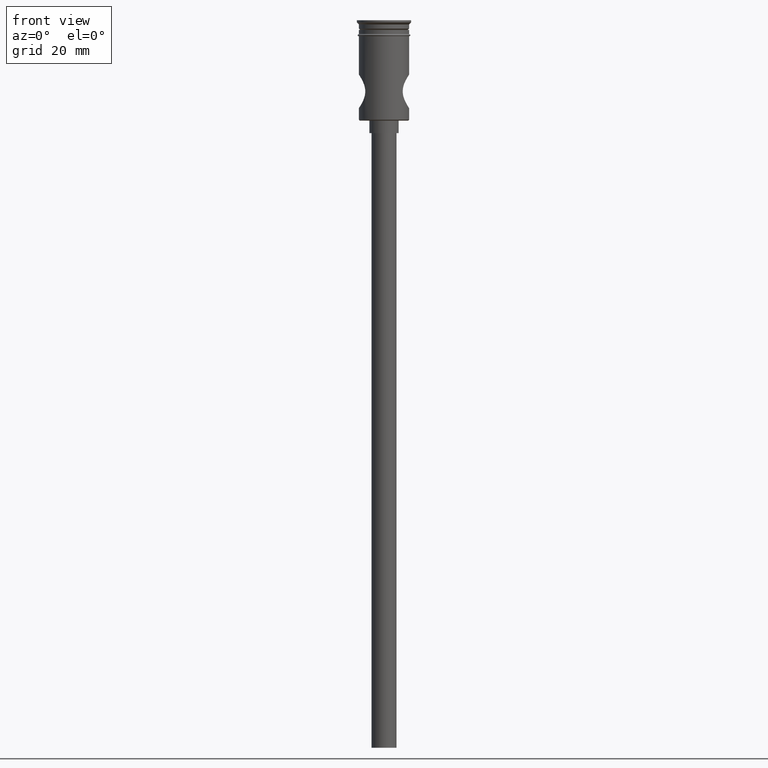
[diagram: clean part render]
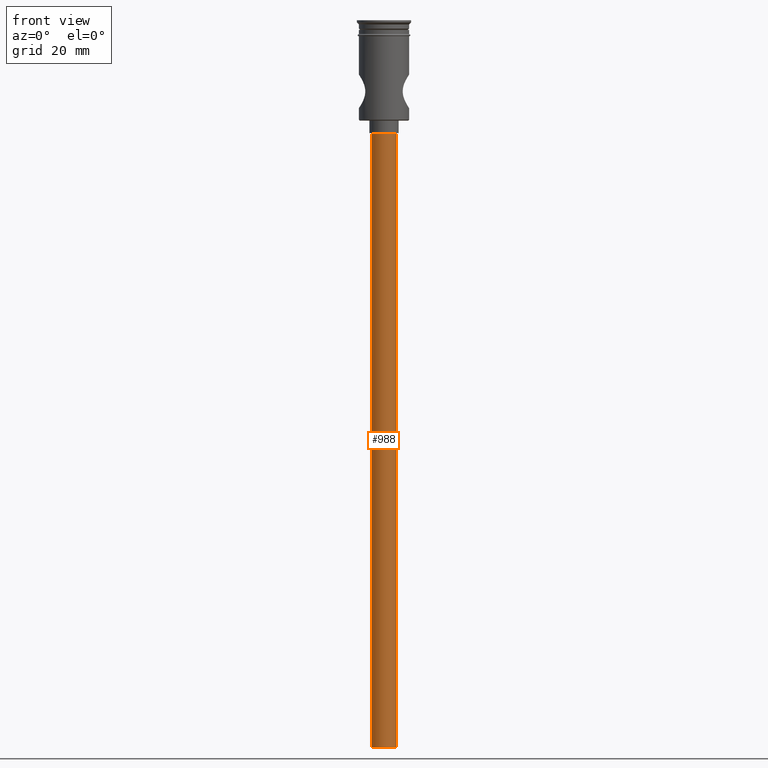
[diagram: same view with one face highlighted and labeled with its STEP entity id]
A machine part, front view. The second image highlights one B-rep face of the part: STEP entity #988.
In plain terms, the highlighted cylindrical surface (edge-blend (fillet) strip) has radius 3 mm, axis along (-0, -0, 1).
Its self-contained STEP definition (entity closure, byte-faithful):
#17 = CARTESIAN_POINT ( 'NONE',  ( -3.000000000000000444, 3.673940397442060361E-16, -27.00000000000000000 ) ) ;
#35 = ORIENTED_EDGE ( 'NONE', *, *, #1084, .T. ) ;
#71 = AXIS2_PLACEMENT_3D ( 'NONE', #670, #468, #1282 ) ;
#103 = CARTESIAN_POINT ( 'NONE',  ( 3.000000000000000444, 0.000000000000000000, -27.00000000000000000 ) ) ;
#125 = DIRECTION ( 'NONE',  ( -1.000000000000000000, 0.000000000000000000, 0.000000000000000000 ) ) ;
#164 = CIRCLE ( 'NONE', #919, 3.000000000000000444 ) ;
#330 = AXIS2_PLACEMENT_3D ( 'NONE', #696, #930, #125 ) ;
#402 = ORIENTED_EDGE ( 'NONE', *, *, #1159, .F. ) ;
#425 = VECTOR ( 'NONE', #826, 1000.000000000000000 ) ;
#429 = VERTEX_POINT ( 'NONE', #891 ) ;
#467 = VERTEX_POINT ( 'NONE', #17 ) ;
#468 = DIRECTION ( 'NONE',  ( -0.000000000000000000, -0.000000000000000000, 1.000000000000000000 ) ) ;
#481 = CARTESIAN_POINT ( 'NONE',  ( 3.000000000000000444, 0.000000000000000000, -174.0000000000000000 ) ) ;
#506 = LINE ( 'NONE', #481, #425 ) ;
#533 = EDGE_LOOP ( 'NONE', ( #910, #402, #35, #1416 ) ) ;
#545 = DIRECTION ( 'NONE',  ( 0.000000000000000000, 0.000000000000000000, -1.000000000000000000 ) ) ;
#670 = CARTESIAN_POINT ( 'NONE',  ( 0.000000000000000000, 0.000000000000000000, -174.0000000000000000 ) ) ;
#691 = VERTEX_POINT ( 'NONE', #1338 ) ;
#696 = CARTESIAN_POINT ( 'NONE',  ( 0.000000000000000000, 0.000000000000000000, -27.00000000000000000 ) ) ;
#730 = EDGE_CURVE ( 'NONE', #1180, #467, #848, .T. ) ;
#801 = CYLINDRICAL_SURFACE ( 'NONE', #71, 3.000000000000000444 ) ;
#815 = FACE_OUTER_BOUND ( 'NONE', #533, .T. ) ;
#826 = DIRECTION ( 'NONE',  ( -0.000000000000000000, -0.000000000000000000, 1.000000000000000000 ) ) ;
#848 = CIRCLE ( 'NONE', #330, 3.000000000000000444 ) ;
#850 = VECTOR ( 'NONE', #1295, 1000.000000000000000 ) ;
#891 = CARTESIAN_POINT ( 'NONE',  ( -3.000000000000000444, 3.673940397442060361E-16, -174.0000000000000000 ) ) ;
#910 = ORIENTED_EDGE ( 'NONE', *, *, #1050, .F. ) ;
#919 = AXIS2_PLACEMENT_3D ( 'NONE', #1226, #545, #983 ) ;
#930 = DIRECTION ( 'NONE',  ( 0.000000000000000000, 0.000000000000000000, -1.000000000000000000 ) ) ;
#958 = LINE ( 'NONE', #1052, #850 ) ;
#983 = DIRECTION ( 'NONE',  ( -1.000000000000000000, 0.000000000000000000, 0.000000000000000000 ) ) ;
#988 = ADVANCED_FACE ( 'NONE', ( #815 ), #801, .T. ) ;
#1050 = EDGE_CURVE ( 'NONE', #429, #467, #958, .T. ) ;
#1052 = CARTESIAN_POINT ( 'NONE',  ( -3.000000000000000444, 3.673940397442060361E-16, -174.0000000000000000 ) ) ;
#1084 = EDGE_CURVE ( 'NONE', #691, #1180, #506, .T. ) ;
#1159 = EDGE_CURVE ( 'NONE', #691, #429, #164, .T. ) ;
#1180 = VERTEX_POINT ( 'NONE', #103 ) ;
#1226 = CARTESIAN_POINT ( 'NONE',  ( 0.000000000000000000, 0.000000000000000000, -174.0000000000000000 ) ) ;
#1282 = DIRECTION ( 'NONE',  ( 1.000000000000000000, 0.000000000000000000, 0.000000000000000000 ) ) ;
#1295 = DIRECTION ( 'NONE',  ( -0.000000000000000000, -0.000000000000000000, 1.000000000000000000 ) ) ;
#1338 = CARTESIAN_POINT ( 'NONE',  ( 3.000000000000000444, 0.000000000000000000, -174.0000000000000000 ) ) ;
#1416 = ORIENTED_EDGE ( 'NONE', *, *, #730, .T. ) ;